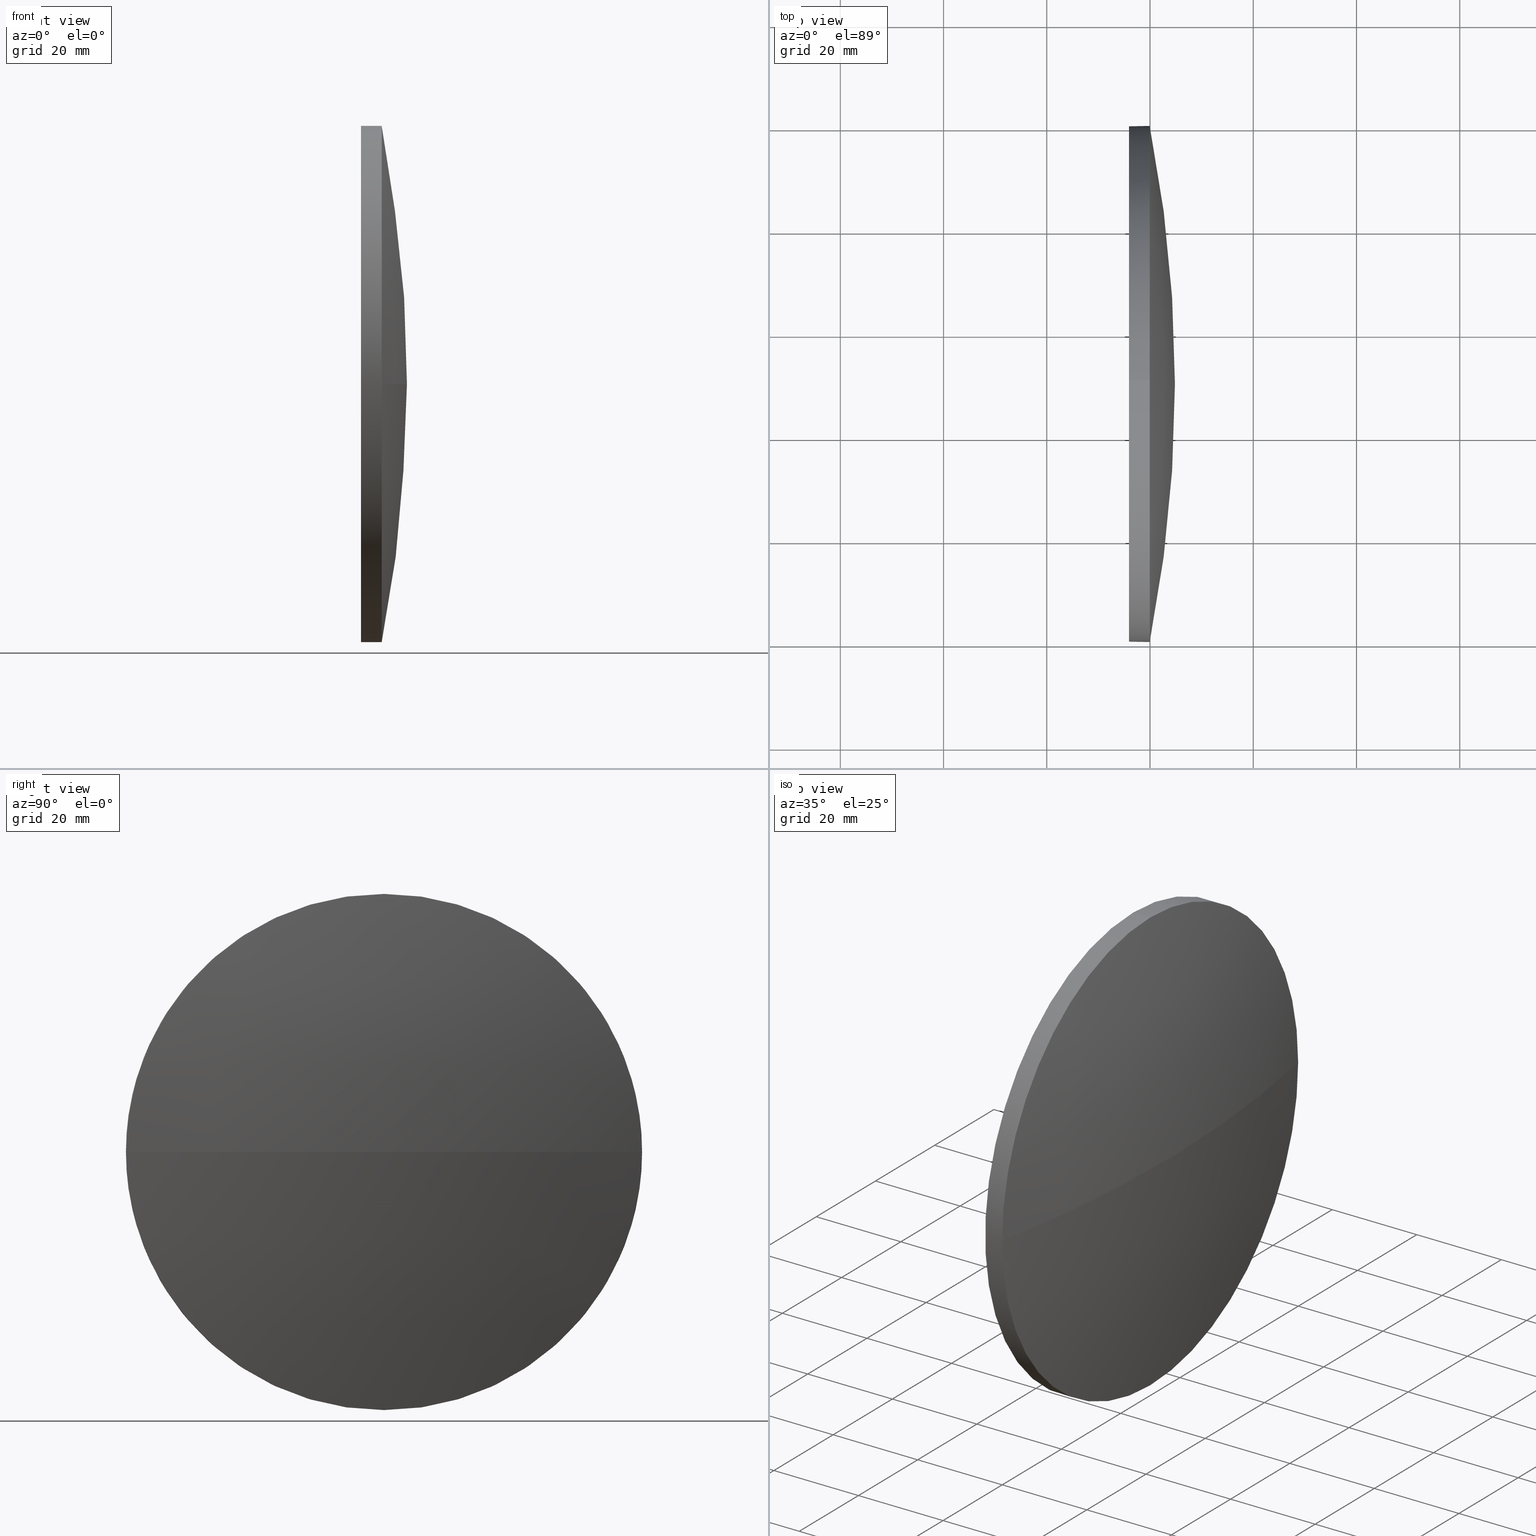
[diagram: canonical four-view strip — front | top / right | iso, engineering-drawing reading convention]
A machine part, canonical four-view strip (front | top / right | iso — engineering-drawing reading convention). The complete STEP part file that produces these views, byte-faithful:
ISO-10303-21;
HEADER;
FILE_DESCRIPTION (( 'STEP AP214' ),
    '1' );
FILE_NAME ('100085.STEP',
    '2019-05-13T01:51:13',
    ( '' ),
    ( '' ),
    'SwSTEP 2.0',
    'SolidWorks 2016',
    '' );
FILE_SCHEMA (( 'AUTOMOTIVE_DESIGN' ));
ENDSEC;

DATA;
#1 = ORIENTED_EDGE ( 'NONE', *, *, #29, .F. ) ;
#2 = DIRECTION ( 'NONE',  ( -1.000000000000000000, -0.0000000000000000000, -0.0000000000000000000 ) ) ;
#3 = ADVANCED_FACE ( 'NONE', ( #143 ), #49, .F. ) ;
#4 = DIRECTION ( 'NONE',  ( -0.0000000000000000000, 0.0000000000000000000, -1.000000000000000000 ) ) ;
#5 = SURFACE_STYLE_USAGE ( .BOTH. , #17 ) ;
#6 =( LENGTH_UNIT ( ) NAMED_UNIT ( * ) SI_UNIT ( .MILLI., .METRE. ) );
#7 = VERTEX_POINT ( 'NONE', #50 ) ;
#8 = SURFACE_SIDE_STYLE ('',( #159 ) ) ;
#9 = CYLINDRICAL_SURFACE ( 'NONE', #85, 50.00000000000001400 ) ;
#10 = PRESENTATION_STYLE_ASSIGNMENT (( #5 ) ) ;
#11 = CLOSED_SHELL ( 'NONE', ( #101, #135, #70, #114, #3 ) ) ;
#12 = AXIS2_PLACEMENT_3D ( 'NONE', #115, #81, #16 ) ;
#13 = DIRECTION ( 'NONE',  ( -1.000000000000000000, -0.0000000000000000000, -0.0000000000000000000 ) ) ;
#14 = DIRECTION ( 'NONE',  ( 0.0000000000000000000, 0.0000000000000000000, 1.000000000000000000 ) ) ;
#15 = CARTESIAN_POINT ( 'NONE',  ( 239.9389074292314500, 130.0418907599245100, 50.00000000000001400 ) ) ;
#16 = DIRECTION ( 'NONE',  ( 0.0000000000000000000, 0.0000000000000000000, 1.000000000000000000 ) ) ;
#17 = SURFACE_SIDE_STYLE ('',( #168 ) ) ;
#18 = UNCERTAINTY_MEASURE_WITH_UNIT (LENGTH_MEASURE( 1.000000000000000100E-005 ), #37, 'distance_accuracy_value', 'NONE');
#19 = SPHERICAL_SURFACE ( 'NONE', #104, 258.0687218813920900 ) ;
#20 = EDGE_CURVE ( 'NONE', #107, #151, #60, .T. ) ;
#21 = CARTESIAN_POINT ( 'NONE',  ( 235.9389074292314500, 130.0418907599245100, 0.0000000000000000000 ) ) ;
#22 = VECTOR ( 'NONE', #13, 1000.000000000000000 ) ;
#23 = CARTESIAN_POINT ( 'NONE',  ( 239.9389074292314500, 130.0418907599245100, 0.0000000000000000000 ) ) ;
#24 = AXIS2_PLACEMENT_3D ( 'NONE', #98, #134, #86 ) ;
#25 = DIRECTION ( 'NONE',  ( 0.0000000000000000000, 1.224646799147353200E-016, -1.000000000000000000 ) ) ;
#26 = AXIS2_PLACEMENT_3D ( 'NONE', #21, #180, #92 ) ;
#27 = EDGE_LOOP ( 'NONE', ( #47, #35, #1, #44 ) ) ;
#28 = CARTESIAN_POINT ( 'NONE',  ( 217.3311486608872700, 130.0418907599245100, -50.00000000000001400 ) ) ;
#29 = EDGE_CURVE ( 'NONE', #182, #157, #100, .T. ) ;
#30 = PRODUCT_DEFINITION_FORMATION_WITH_SPECIFIED_SOURCE ( '�κ�', '', #31, .NOT_KNOWN. ) ;
#31 = PRODUCT ( '100085', '100085', '', ( #164 ) ) ;
#32 = ORIENTED_EDGE ( 'NONE', *, *, #29, .T. ) ;
#33 = AXIS2_PLACEMENT_3D ( 'NONE', #126, #34, #138 ) ;
#34 = DIRECTION ( 'NONE',  ( -0.0000000000000000000, 0.0000000000000000000, 1.000000000000000000 ) ) ;
#35 = ORIENTED_EDGE ( 'NONE', *, *, #186, .T. ) ;
#36 = CARTESIAN_POINT ( 'NONE',  ( 244.8289074292313800, 130.0418907599245400, 0.0000000000000000000 ) ) ;
#37 =( LENGTH_UNIT ( ) NAMED_UNIT ( * ) SI_UNIT ( .MILLI., .METRE. ) );
#38 = CIRCLE ( 'NONE', #24, 50.00000000000001400 ) ;
#39 = ORIENTED_EDGE ( 'NONE', *, *, #88, .T. ) ;
#40 = EDGE_CURVE ( 'NONE', #110, #7, #57, .T. ) ;
#41 = FACE_OUTER_BOUND ( 'NONE', #76, .T. ) ;
#42 =( LENGTH_UNIT ( ) NAMED_UNIT ( * ) SI_UNIT ( .MILLI., .METRE. ) );
#43 =( NAMED_UNIT ( * ) PLANE_ANGLE_UNIT ( ) SI_UNIT ( $, .RADIAN. ) );
#44 = ORIENTED_EDGE ( 'NONE', *, *, #111, .F. ) ;
#45 =( NAMED_UNIT ( * ) PLANE_ANGLE_UNIT ( ) SI_UNIT ( $, .RADIAN. ) );
#46 = EDGE_CURVE ( 'NONE', #7, #116, #137, .T. ) ;
#47 = ORIENTED_EDGE ( 'NONE', *, *, #20, .F. ) ;
#48 = VECTOR ( 'NONE', #2, 1000.000000000000000 ) ;
#49 = PLANE ( 'NONE',  #26 ) ;
#50 = CARTESIAN_POINT ( 'NONE',  ( 235.9389074292314500, 130.0418907599245100, 50.00000000000001400 ) ) ;
#51 = DIRECTION ( 'NONE',  ( -1.000000000000000000, -0.0000000000000000000, -0.0000000000000000000 ) ) ;
#52 = CARTESIAN_POINT ( 'NONE',  ( -13.23981445216068700, 130.0418907599245100, 0.0000000000000000000 ) ) ;
#53 = CIRCLE ( 'NONE', #91, 50.00000000000001400 ) ;
#54 = DIRECTION ( 'NONE',  ( 0.0000000000000000000, 1.000000000000000000, 0.0000000000000000000 ) ) ;
#55 = AXIS2_PLACEMENT_3D ( 'NONE', #93, #51, #77 ) ;
#56 = SPHERICAL_SURFACE ( 'NONE', #162, 258.0687218813920900 ) ;
#57 = LINE ( 'NONE', #166, #22 ) ;
#58 = CIRCLE ( 'NONE', #150, 50.00000000000001400 ) ;
#59 = ADVANCED_BREP_SHAPE_REPRESENTATION ( '100085', ( #89, #113 ), #131 ) ;
#60 = CIRCLE ( 'NONE', #33, 258.0687218813920900 ) ;
#61 = DIRECTION ( 'NONE',  ( -0.0000000000000000000, 0.0000000000000000000, -1.000000000000000000 ) ) ;
#62 = CARTESIAN_POINT ( 'NONE',  ( -13.23981445216068700, 130.0418907599245100, 0.0000000000000000000 ) ) ;
#63 = CARTESIAN_POINT ( 'NONE',  ( 235.9389074292314500, 130.0418907599245100, -50.00000000000001400 ) ) ;
#64 = FACE_OUTER_BOUND ( 'NONE', #79, .T. ) ;
#65 = ORIENTED_EDGE ( 'NONE', *, *, #108, .F. ) ;
#66 = CARTESIAN_POINT ( 'NONE',  ( 239.9389074292314500, 130.0418907599245100, 0.0000000000000000000 ) ) ;
#67 = APPLICATION_CONTEXT ( 'automotive_design' ) ;
#68 = ORIENTED_EDGE ( 'NONE', *, *, #46, .T. ) ;
#69 = FILL_AREA_STYLE ('',( #155 ) ) ;
#70 = ADVANCED_FACE ( 'NONE', ( #139 ), #19, .T. ) ;
#71 = APPLICATION_PROTOCOL_DEFINITION ( 'draft international standard', 'automotive_design', 1998, #163 ) ;
#72 = PRODUCT_DEFINITION_CONTEXT ( 'detailed design', #163, 'design' ) ;
#73 = SURFACE_STYLE_USAGE ( .BOTH. , #8 ) ;
#74 = ORIENTED_EDGE ( 'NONE', *, *, #40, .T. ) ;
#75 = PRODUCT_RELATED_PRODUCT_CATEGORY ( 'part', '', ( #31 ) ) ;
#76 = EDGE_LOOP ( 'NONE', ( #129, #32, #39, #74, #65 ) ) ;
#77 = DIRECTION ( 'NONE',  ( 0.0000000000000000000, 0.0000000000000000000, 1.000000000000000000 ) ) ;
#78 = STYLED_ITEM ( 'NONE', ( #118 ), #59 ) ;
#79 = EDGE_LOOP ( 'NONE', ( #121, #132, #87, #90, #178 ) ) ;
#80 = DIRECTION ( 'NONE',  ( 0.0000000000000000000, 0.0000000000000000000, 1.000000000000000000 ) ) ;
#81 = DIRECTION ( 'NONE',  ( -1.000000000000000000, -0.0000000000000000000, -0.0000000000000000000 ) ) ;
#82 = ORIENTED_EDGE ( 'NONE', *, *, #97, .F. ) ;
#83 = AXIS2_PLACEMENT_3D ( 'NONE', #167, #183, #14 ) ;
#84 = COLOUR_RGB ( '',1.000000000000000000, 1.000000000000000000, 1.000000000000000000 ) ;
#85 = AXIS2_PLACEMENT_3D ( 'NONE', #177, #185, #80 ) ;
#86 = DIRECTION ( 'NONE',  ( 0.0000000000000000000, 0.0000000000000000000, 1.000000000000000000 ) ) ;
#87 = ORIENTED_EDGE ( 'NONE', *, *, #46, .F. ) ;
#88 = EDGE_CURVE ( 'NONE', #157, #110, #53, .T. ) ;
#89 = MANIFOLD_SOLID_BREP ( '��ת1', #11 ) ;
#90 = ORIENTED_EDGE ( 'NONE', *, *, #40, .F. ) ;
#91 = AXIS2_PLACEMENT_3D ( 'NONE', #66, #160, #133 ) ;
#92 = DIRECTION ( 'NONE',  ( 0.0000000000000000000, 0.0000000000000000000, -1.000000000000000000 ) ) ;
#93 = CARTESIAN_POINT ( 'NONE',  ( 239.9389074292314500, 130.0418907599245100, 0.0000000000000000000 ) ) ;
#94 = EDGE_LOOP ( 'NONE', ( #148, #124, #82, #112 ) ) ;
#95 = CARTESIAN_POINT ( 'NONE',  ( 239.9389074292314500, 80.04189075992455600, -6.123233995736760600E-015 ) ) ;
#96 = FACE_OUTER_BOUND ( 'NONE', #27, .T. ) ;
#97 = EDGE_CURVE ( 'NONE', #110, #151, #130, .T. ) ;
#98 = CARTESIAN_POINT ( 'NONE',  ( 235.9389074292314500, 130.0418907599245100, 0.0000000000000000000 ) ) ;
#99 =( NAMED_UNIT ( * ) SI_UNIT ( $, .STERADIAN. ) SOLID_ANGLE_UNIT ( ) );
#100 = CIRCLE ( 'NONE', #55, 50.00000000000001400 ) ;
#101 = ADVANCED_FACE ( 'NONE', ( #64 ), #9, .T. ) ;
#102 = CARTESIAN_POINT ( 'NONE',  ( 239.9389074292314500, 130.0418907599245100, 0.0000000000000000000 ) ) ;
#103 = CARTESIAN_POINT ( 'NONE',  ( 239.9389074292314500, 180.0418907599244300, 0.0000000000000000000 ) ) ;
#104 = AXIS2_PLACEMENT_3D ( 'NONE', #52, #61, #184 ) ;
#105 =( GEOMETRIC_REPRESENTATION_CONTEXT ( 3 ) GLOBAL_UNCERTAINTY_ASSIGNED_CONTEXT ( ( #120 ) ) GLOBAL_UNIT_ASSIGNED_CONTEXT ( ( #6, #45, #146 ) ) REPRESENTATION_CONTEXT ( 'NONE', 'WORKASPACE' ) );
#106 = FILL_AREA_STYLE_COLOUR ( '', #123 ) ;
#107 = VERTEX_POINT ( 'NONE', #36 ) ;
#108 = EDGE_CURVE ( 'NONE', #116, #7, #38, .T. ) ;
#109 = CARTESIAN_POINT ( 'NONE',  ( -13.23981445216068700, 130.0418907599245100, 0.0000000000000000000 ) ) ;
#110 = VERTEX_POINT ( 'NONE', #15 ) ;
#111 = EDGE_CURVE ( 'NONE', #151, #182, #58, .T. ) ;
#112 = ORIENTED_EDGE ( 'NONE', *, *, #88, .F. ) ;
#113 = AXIS2_PLACEMENT_3D ( 'NONE', #171, #119, #147 ) ;
#114 = ADVANCED_FACE ( 'NONE', ( #41 ), #144, .T. ) ;
#115 = CARTESIAN_POINT ( 'NONE',  ( 217.3311486608872700, 130.0418907599245100, 0.0000000000000000000 ) ) ;
#116 = VERTEX_POINT ( 'NONE', #63 ) ;
#117 = APPLICATION_PROTOCOL_DEFINITION ( 'draft international standard', 'automotive_design', 1998, #67 ) ;
#118 = PRESENTATION_STYLE_ASSIGNMENT (( #73 ) ) ;
#119 = DIRECTION ( 'NONE',  ( 0.0000000000000000000, 0.0000000000000000000, 1.000000000000000000 ) ) ;
#120 = UNCERTAINTY_MEASURE_WITH_UNIT (LENGTH_MEASURE( 1.000000000000000100E-005 ), #6, 'distance_accuracy_value', 'NONE');
#121 = ORIENTED_EDGE ( 'NONE', *, *, #111, .T. ) ;
#122 = CIRCLE ( 'NONE', #176, 258.0687218813920900 ) ;
#123 = COLOUR_RGB ( '',1.000000000000000000, 1.000000000000000000, 1.000000000000000000 ) ;
#124 = ORIENTED_EDGE ( 'NONE', *, *, #20, .T. ) ;
#125 = STYLED_ITEM ( 'NONE', ( #10 ), #89 ) ;
#126 = CARTESIAN_POINT ( 'NONE',  ( -13.23981445216068700, 130.0418907599245100, 0.0000000000000000000 ) ) ;
#127 = FILL_AREA_STYLE ('',( #106 ) ) ;
#128 = DIRECTION ( 'NONE',  ( -1.000000000000000000, -0.0000000000000000000, -0.0000000000000000000 ) ) ;
#129 = ORIENTED_EDGE ( 'NONE', *, *, #145, .F. ) ;
#130 = CIRCLE ( 'NONE', #173, 50.00000000000001400 ) ;
#131 =( GEOMETRIC_REPRESENTATION_CONTEXT ( 3 ) GLOBAL_UNCERTAINTY_ASSIGNED_CONTEXT ( ( #18 ) ) GLOBAL_UNIT_ASSIGNED_CONTEXT ( ( #37, #43, #99 ) ) REPRESENTATION_CONTEXT ( 'NONE', 'WORKASPACE' ) );
#132 = ORIENTED_EDGE ( 'NONE', *, *, #145, .T. ) ;
#133 = DIRECTION ( 'NONE',  ( 0.0000000000000000000, 0.0000000000000000000, 1.000000000000000000 ) ) ;
#134 = DIRECTION ( 'NONE',  ( -1.000000000000000000, -0.0000000000000000000, -0.0000000000000000000 ) ) ;
#135 = ADVANCED_FACE ( 'NONE', ( #96 ), #56, .T. ) ;
#136 = PRODUCT_DEFINITION ( 'δ֪', '', #30, #72 ) ;
#137 = CIRCLE ( 'NONE', #83, 50.00000000000001400 ) ;
#138 = DIRECTION ( 'NONE',  ( 1.000000000000000000, 0.0000000000000000000, 0.0000000000000000000 ) ) ;
#139 = FACE_OUTER_BOUND ( 'NONE', #94, .T. ) ;
#140 = DIRECTION ( 'NONE',  ( -1.000000000000000000, -0.0000000000000000000, -0.0000000000000000000 ) ) ;
#141 = LINE ( 'NONE', #28, #48 ) ;
#142 = PRESENTATION_LAYER_ASSIGNMENT (  '', '', ( #125 ) ) ;
#143 = FACE_OUTER_BOUND ( 'NONE', #174, .T. ) ;
#144 = CYLINDRICAL_SURFACE ( 'NONE', #12, 50.00000000000001400 ) ;
#145 = EDGE_CURVE ( 'NONE', #182, #116, #141, .T. ) ;
#146 =( NAMED_UNIT ( * ) SI_UNIT ( $, .STERADIAN. ) SOLID_ANGLE_UNIT ( ) );
#147 = DIRECTION ( 'NONE',  ( 1.000000000000000000, 0.0000000000000000000, 0.0000000000000000000 ) ) ;
#148 = ORIENTED_EDGE ( 'NONE', *, *, #186, .F. ) ;
#149 = SHAPE_DEFINITION_REPRESENTATION ( #181, #59 ) ;
#150 = AXIS2_PLACEMENT_3D ( 'NONE', #102, #140, #161 ) ;
#151 = VERTEX_POINT ( 'NONE', #103 ) ;
#152 = ORIENTED_EDGE ( 'NONE', *, *, #108, .T. ) ;
#153 = MECHANICAL_DESIGN_GEOMETRIC_PRESENTATION_REPRESENTATION (  '', ( #125 ), #165 ) ;
#154 =( NAMED_UNIT ( * ) PLANE_ANGLE_UNIT ( ) SI_UNIT ( $, .RADIAN. ) );
#155 = FILL_AREA_STYLE_COLOUR ( '', #84 ) ;
#156 = DIRECTION ( 'NONE',  ( 0.0000000000000000000, 1.000000000000000000, 1.224646799147353000E-016 ) ) ;
#157 = VERTEX_POINT ( 'NONE', #95 ) ;
#158 = MECHANICAL_DESIGN_GEOMETRIC_PRESENTATION_REPRESENTATION (  '', ( #78 ), #105 ) ;
#159 = SURFACE_STYLE_FILL_AREA ( #69 ) ;
#160 = DIRECTION ( 'NONE',  ( -1.000000000000000000, -0.0000000000000000000, -0.0000000000000000000 ) ) ;
#161 = DIRECTION ( 'NONE',  ( 0.0000000000000000000, 0.0000000000000000000, 1.000000000000000000 ) ) ;
#162 = AXIS2_PLACEMENT_3D ( 'NONE', #109, #4, #54 ) ;
#163 = APPLICATION_CONTEXT ( 'automotive_design' ) ;
#164 = PRODUCT_CONTEXT ( 'NONE', #67, 'mechanical' ) ;
#165 =( GEOMETRIC_REPRESENTATION_CONTEXT ( 3 ) GLOBAL_UNCERTAINTY_ASSIGNED_CONTEXT ( ( #172 ) ) GLOBAL_UNIT_ASSIGNED_CONTEXT ( ( #42, #154, #170 ) ) REPRESENTATION_CONTEXT ( 'NONE', 'WORKASPACE' ) );
#166 = CARTESIAN_POINT ( 'NONE',  ( 217.3311486608872700, 130.0418907599245100, 50.00000000000001400 ) ) ;
#167 = CARTESIAN_POINT ( 'NONE',  ( 235.9389074292314500, 130.0418907599245100, 0.0000000000000000000 ) ) ;
#168 = SURFACE_STYLE_FILL_AREA ( #127 ) ;
#169 = CARTESIAN_POINT ( 'NONE',  ( 239.9389074292314500, 130.0418907599245100, -50.00000000000001400 ) ) ;
#170 =( NAMED_UNIT ( * ) SI_UNIT ( $, .STERADIAN. ) SOLID_ANGLE_UNIT ( ) );
#171 = CARTESIAN_POINT ( 'NONE',  ( 0.0000000000000000000, 0.0000000000000000000, 0.0000000000000000000 ) ) ;
#172 = UNCERTAINTY_MEASURE_WITH_UNIT (LENGTH_MEASURE( 1.000000000000000100E-005 ), #42, 'distance_accuracy_value', 'NONE');
#173 = AXIS2_PLACEMENT_3D ( 'NONE', #23, #128, #175 ) ;
#174 = EDGE_LOOP ( 'NONE', ( #68, #152 ) ) ;
#175 = DIRECTION ( 'NONE',  ( 0.0000000000000000000, 0.0000000000000000000, 1.000000000000000000 ) ) ;
#176 = AXIS2_PLACEMENT_3D ( 'NONE', #62, #25, #156 ) ;
#177 = CARTESIAN_POINT ( 'NONE',  ( 217.3311486608872700, 130.0418907599245100, 0.0000000000000000000 ) ) ;
#178 = ORIENTED_EDGE ( 'NONE', *, *, #97, .T. ) ;
#179 = PRESENTATION_LAYER_ASSIGNMENT (  '', '', ( #78 ) ) ;
#180 = DIRECTION ( 'NONE',  ( 1.000000000000000000, 0.0000000000000000000, 0.0000000000000000000 ) ) ;
#181 = PRODUCT_DEFINITION_SHAPE ( 'NONE', 'NONE',  #136 ) ;
#182 = VERTEX_POINT ( 'NONE', #169 ) ;
#183 = DIRECTION ( 'NONE',  ( -1.000000000000000000, -0.0000000000000000000, -0.0000000000000000000 ) ) ;
#184 = DIRECTION ( 'NONE',  ( 0.0000000000000000000, 1.000000000000000000, 0.0000000000000000000 ) ) ;
#185 = DIRECTION ( 'NONE',  ( -1.000000000000000000, -0.0000000000000000000, -0.0000000000000000000 ) ) ;
#186 = EDGE_CURVE ( 'NONE', #107, #157, #122, .T. ) ;
ENDSEC;
END-ISO-10303-21;
